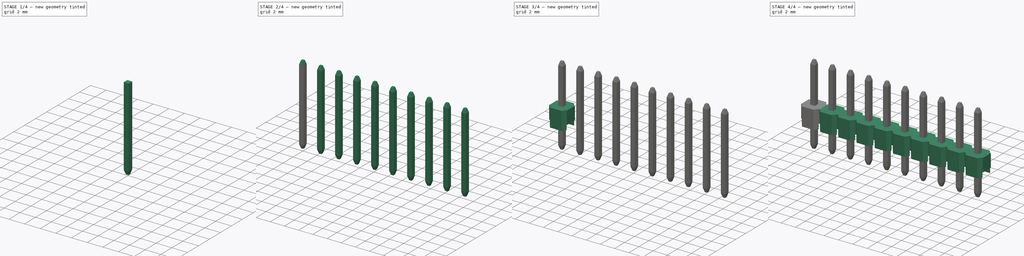
[diagram: build sequence overview — one tinted view per stage of 4, left to right]
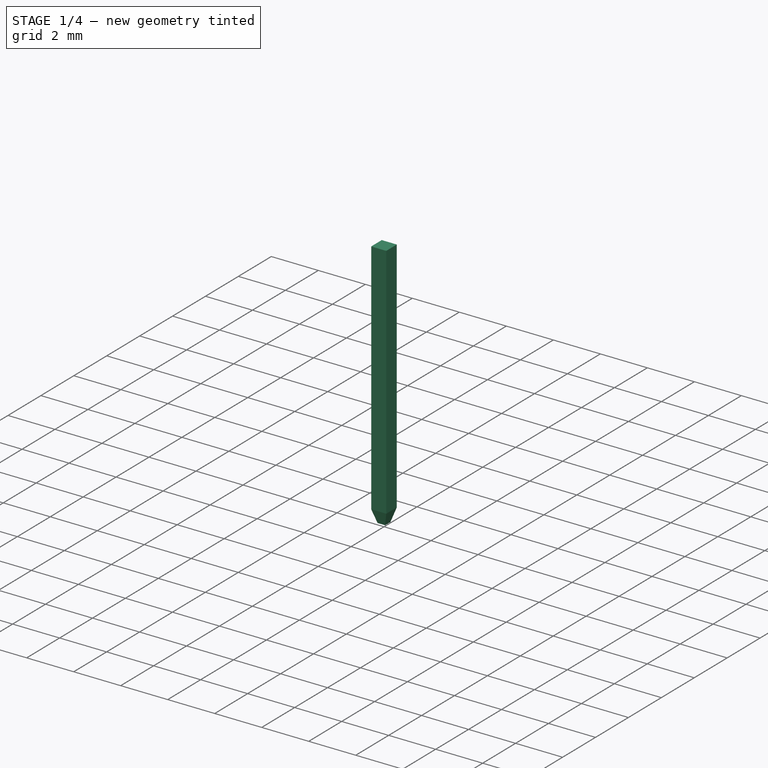
[diagram: stage 1 of 4 — iso view after this stage's code; geometry added in this stage tinted green]
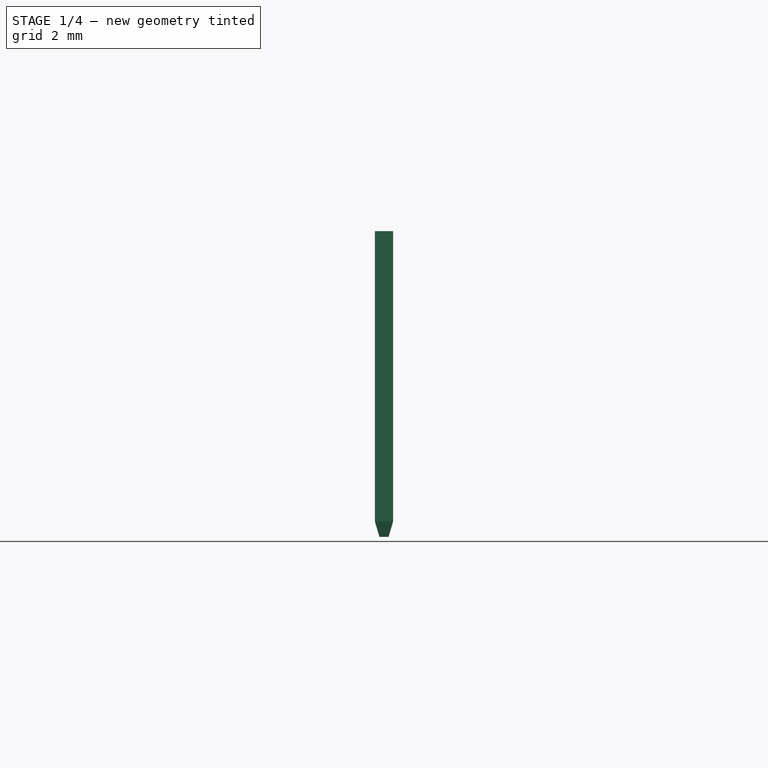
[diagram: stage 1 of 4 — front view after this stage's code; geometry added in this stage tinted green]
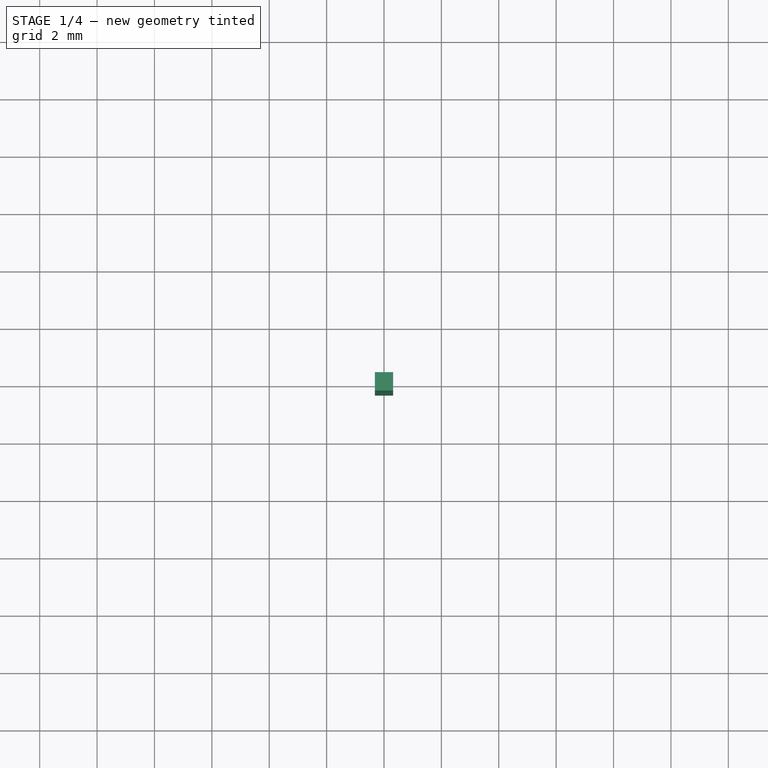
[diagram: stage 1 of 4 — top view after this stage's code; geometry added in this stage tinted green]
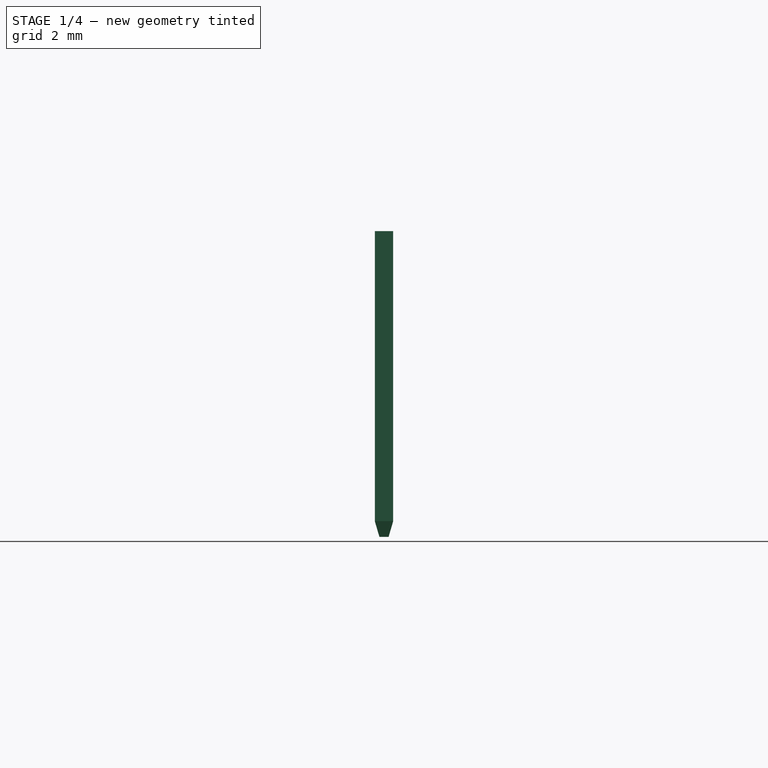
[diagram: stage 1 of 4 — right view after this stage's code; geometry added in this stage tinted green]
FCSTD DOCUMENT  (FreeCAD 0.17R11740 (Git)/Daily-PPA)
Label: 1x10-male-pin-header
License: CC-BY 3.0
LicenseURL: http://creativecommons.org/licenses/by/3.0/
objects: Sketcher::SketchObject×6, Part::FeaturePython×4, PartDesign::Pad×2, PartDesign::Pocket×2, App::DocumentObjectGroup×2, Part::Loft×1, Part::Mirroring×1, Part::MultiFuse×1, Part::Compound×1
note: 22 computed .brp shape members not serialized (recipe doc carries the construction recipe); baked Part::Feature solids carry a one-line shape summary decoded from their .brp

FEATURE [Sketcher::SketchObject] Sketch003  label="pin-base-sketch"
  MapMode = 5
  sketch-geometry (4):
    g0: LineSegment StartX=-0.32 StartY=0.32 StartZ=0 EndX=0.32 EndY=0.32 EndZ=0
    g1: LineSegment StartX=0.32 StartY=0.32 StartZ=0 EndX=0.32 EndY=-0.32 EndZ=0
    g2: LineSegment StartX=0.32 StartY=-0.32 StartZ=0 EndX=-0.32 EndY=-0.32 EndZ=0
    g3: LineSegment StartX=-0.32 StartY=-0.32 StartZ=0 EndX=-0.32 EndY=0.32 EndZ=0
  constraints (11):
    c: Coincident(g0,g1)
    c: Coincident(g1,g2)
    c: Coincident(g2,g3)
    c: Coincident(g3,g0)
    c: Horizontal(g0)
    c: Horizontal(g2)
    c: Vertical(g1)
    c: Vertical(g3)
    c: Symmetric(g0,g1,g-1)
    c: Equal(g0,g3)
    c: DistanceX(g0) = 0.64
FEATURE [PartDesign::Pad] Pad001  label="pin-base"
  Length = 10.108
  Length2 = 100
  Midplane = true
  Profile = -> Sketch003
  Type = 0
FEATURE [Sketcher::SketchObject] Sketch004  label="pin-end-bottom-base-sketch"
  MapMode = 5
  sketch-geometry (4):
    g0: LineSegment StartX=-0.32 StartY=0.32 StartZ=0 EndX=0.32 EndY=0.32 EndZ=0
    g1: LineSegment StartX=0.32 StartY=0.32 StartZ=0 EndX=0.32 EndY=-0.32 EndZ=0
    g2: LineSegment StartX=0.32 StartY=-0.32 StartZ=0 EndX=-0.32 EndY=-0.32 EndZ=0
    g3: LineSegment StartX=-0.32 StartY=-0.32 StartZ=0 EndX=-0.32 EndY=0.32 EndZ=0
  constraints (11):
    c: Coincident(g0,g1)
    c: Coincident(g1,g2)
    c: Coincident(g2,g3)
    c: Coincident(g3,g0)
    c: Horizontal(g0)
    c: Horizontal(g2)
    c: Vertical(g1)
    c: Vertical(g3)
    c: Symmetric(g0,g1,g-1)
    c: Equal(g0,g3)
    c: DistanceX(g0) = 0.64
FEATURE [Sketcher::SketchObject] Sketch005  label="pin-end-top-base-sketch"
  MapMode = 5
  Placement = pos=(0,0,0.546) rot=(0,0,1;0rad)
  sketch-geometry (4):
    g0: LineSegment StartX=-0.16 StartY=0.16 StartZ=0 EndX=0.16 EndY=0.16 EndZ=0
    g1: LineSegment StartX=0.16 StartY=0.16 StartZ=0 EndX=0.16 EndY=-0.16 EndZ=0
    g2: LineSegment StartX=0.16 StartY=-0.16 StartZ=0 EndX=-0.16 EndY=-0.16 EndZ=0
    g3: LineSegment StartX=-0.16 StartY=-0.16 StartZ=0 EndX=-0.16 EndY=0.16 EndZ=0
  constraints (11):
    c: Coincident(g0,g1)
    c: Coincident(g1,g2)
    c: Coincident(g2,g3)
    c: Coincident(g3,g0)
    c: Horizontal(g0)
    c: Horizontal(g2)
    c: Vertical(g1)
    c: Vertical(g3)
    c: Symmetric(g0,g1,g-1)
    c: Equal(g0,g3)
    c: DistanceX(g0) = 0.32
FEATURE [Part::Loft] Loft  label="pin-end"
  Closed = false
  Placement = pos=(0,0,5.054) rot=(0,0,1;0rad)
  Ruled = false
  Sections = -> [Sketch004,Sketch005]
  Solid = true
FEATURE [Part::Mirroring] Part__Mirroring  label="pin-end (Mirror #1)"
  Base = (0,0,0)
  Normal = (0,0,1)
  Source = -> Loft
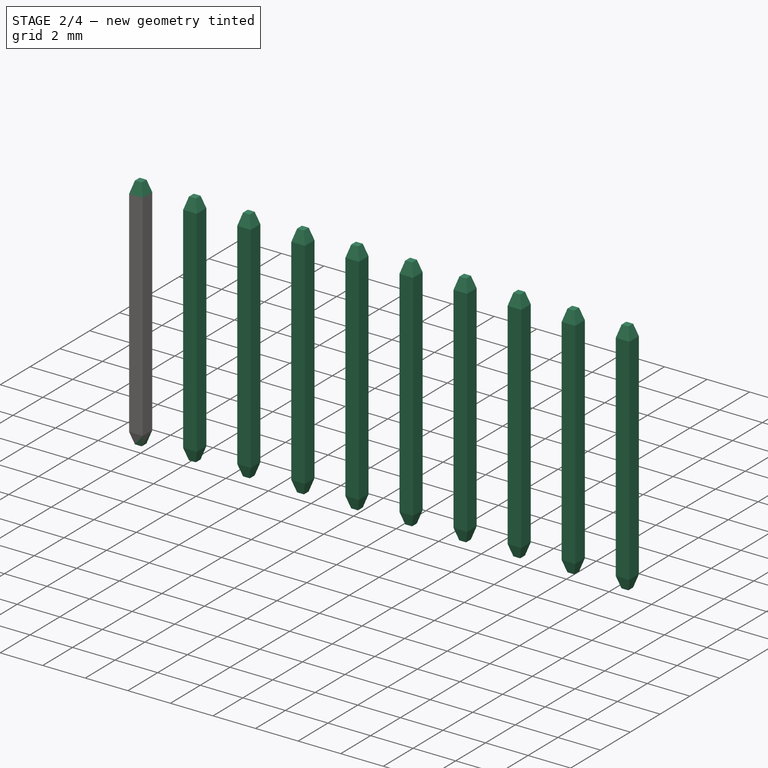
[diagram: stage 2 of 4 — iso view after this stage's code; geometry added in this stage tinted green]
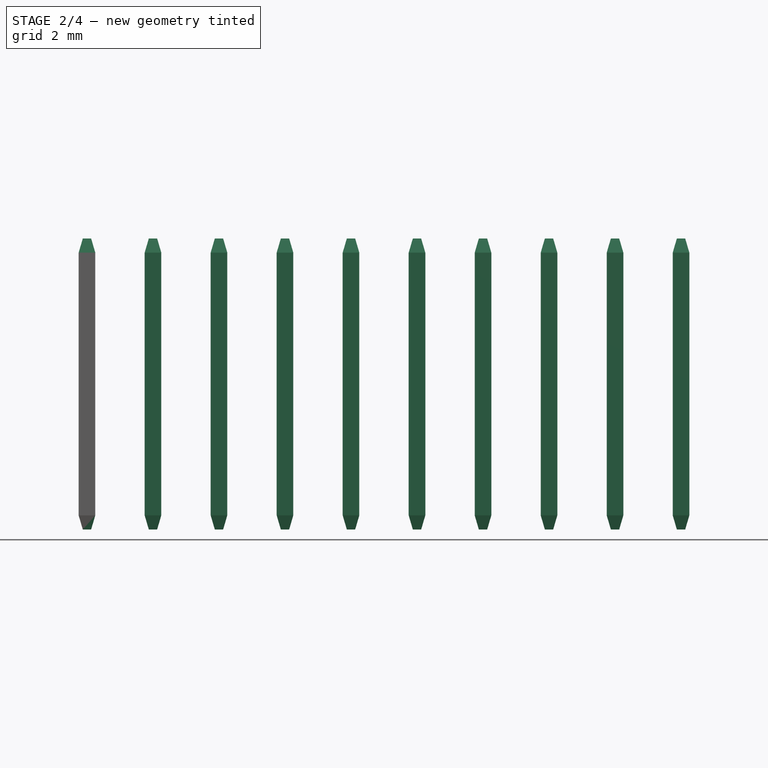
[diagram: stage 2 of 4 — front view after this stage's code; geometry added in this stage tinted green]
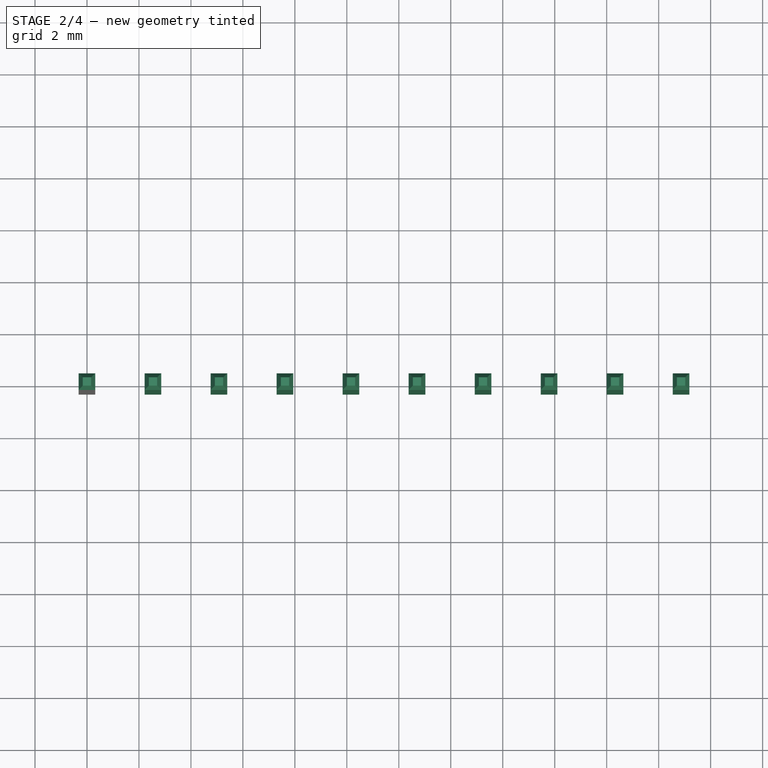
[diagram: stage 2 of 4 — top view after this stage's code; geometry added in this stage tinted green]
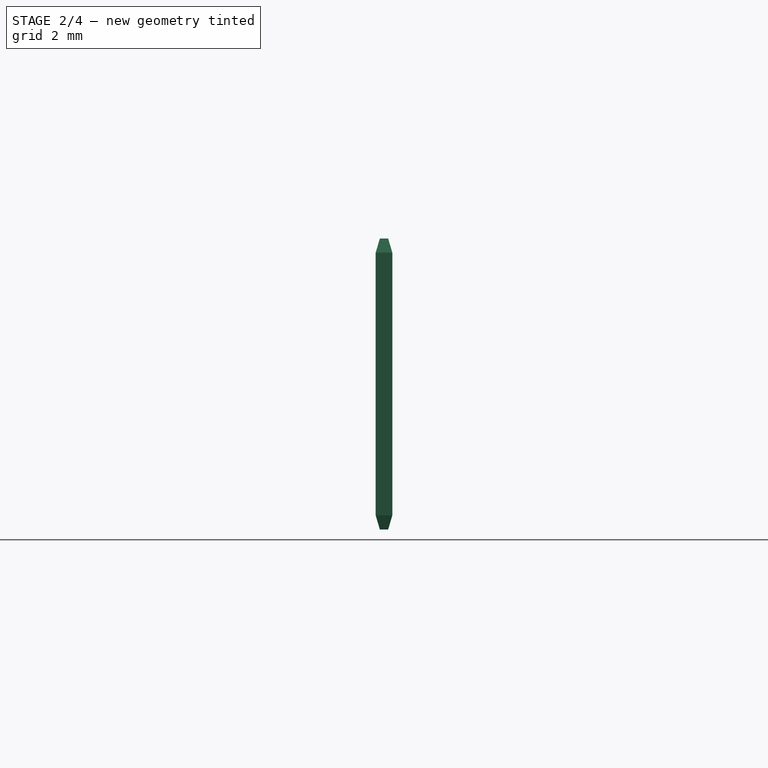
[diagram: stage 2 of 4 — right view after this stage's code; geometry added in this stage tinted green]
FEATURE [Part::MultiFuse] Fusion  label="pin"
  Placement = pos=(0,0,2.6) rot=(0,0,1;0rad)
  Shapes = -> [Pad001,Loft,Part__Mirroring]
FEATURE [App::DocumentObjectGroup] Group  label="pin-support-src"
  Group = -> [Pad002,Pocket001002,Pocket001003,Array]
FEATURE [Part::FeaturePython] Array002  # Draft array (typed FeaturePython)
  Angle = 360
  ArrayType = 0
  Axis = (0,0,1)
  Base = -> Fusion
  Center = (0,0,0)
  IntervalX = (2.54,0,0)
  IntervalY = (0,1,0)
  IntervalZ = (0,0,1)
  NumberPolar = 1
  NumberX = 10
  NumberY = 1
  NumberZ = 1
FEATURE [Part::FeaturePython] Clone001  label="array-of-pin"  # Draft clone (typed FeaturePython)
  Objects = -> [Array002]
  Scale = (1,1,1)
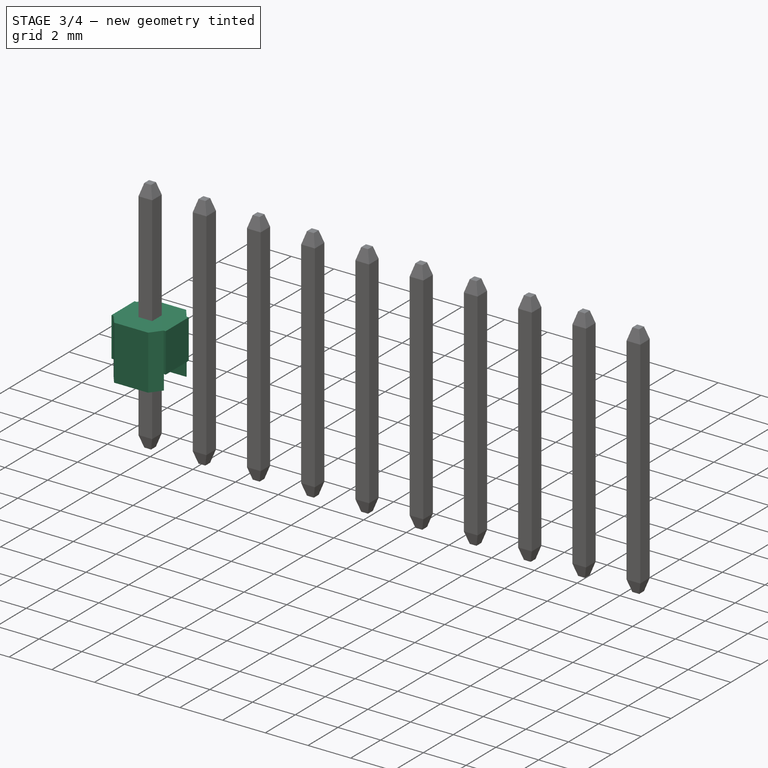
[diagram: stage 3 of 4 — iso view after this stage's code; geometry added in this stage tinted green]
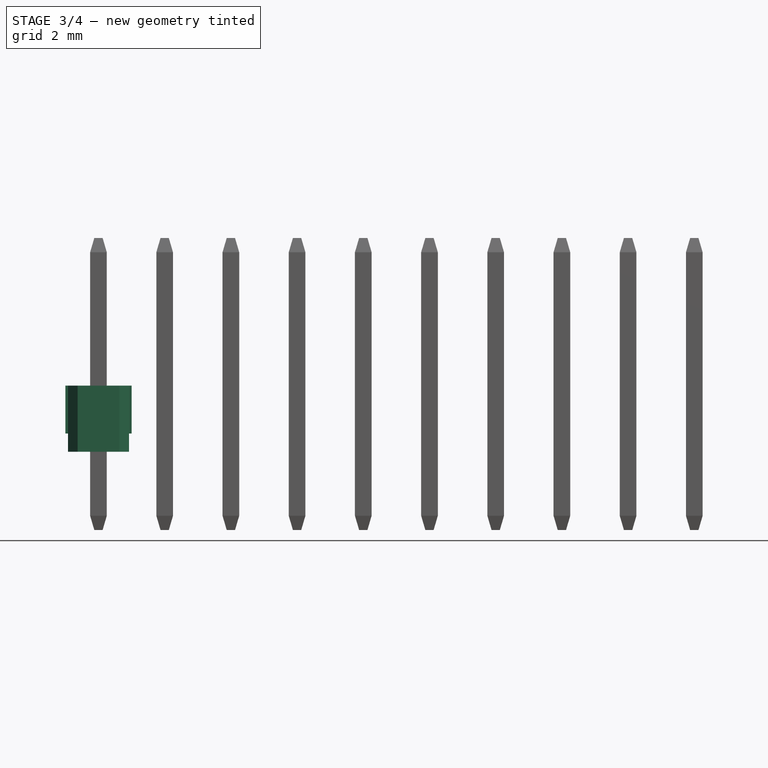
[diagram: stage 3 of 4 — front view after this stage's code; geometry added in this stage tinted green]
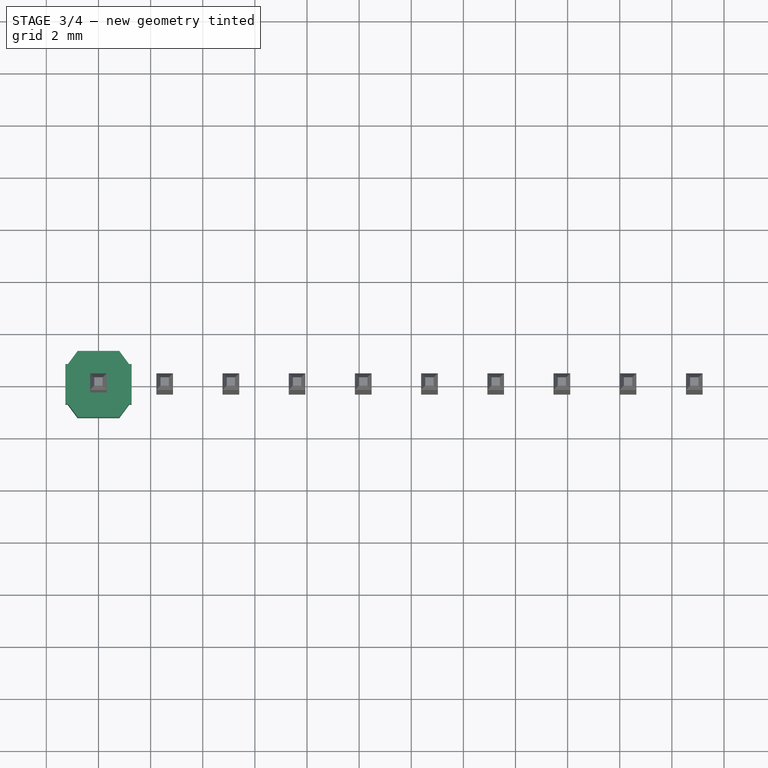
[diagram: stage 3 of 4 — top view after this stage's code; geometry added in this stage tinted green]
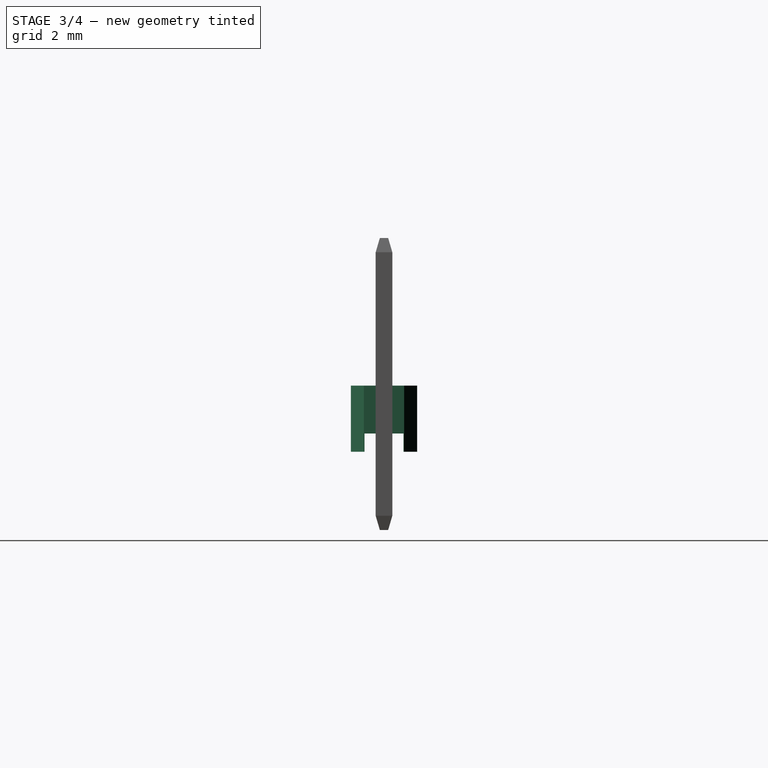
[diagram: stage 3 of 4 — right view after this stage's code; geometry added in this stage tinted green]
FEATURE [Sketcher::SketchObject] Sketch006  label="pin-support-main-sketch"
  MapMode = 5
  sketch-geometry (16):
    g0: LineSegment [constr] StartX=-1.27 StartY=1.27 StartZ=0 EndX=1.27 EndY=1.27 EndZ=0
    g1: LineSegment [constr] StartX=1.27 StartY=1.27 StartZ=0 EndX=1.27 EndY=-1.27 EndZ=0
    g2: LineSegment [constr] StartX=1.27 StartY=-1.27 StartZ=0 EndX=-1.27 EndY=-1.27 EndZ=0
    g3: LineSegment [constr] StartX=-1.27 StartY=-1.27 StartZ=0 EndX=-1.27 EndY=1.27 EndZ=0
    g4: LineSegment StartX=-1.27 StartY=0.77 StartZ=0 EndX=-1.17 EndY=0.77 EndZ=0
    g5: LineSegment StartX=-1.17 StartY=0.77 StartZ=0 EndX=-0.8 EndY=1.27 EndZ=0
    g6: LineSegment StartX=-0.8 StartY=1.27 StartZ=0 EndX=0.8 EndY=1.27 EndZ=0
    g7: LineSegment StartX=0.8 StartY=1.27 StartZ=0 EndX=1.17 EndY=0.77 EndZ=0
    g8: LineSegment StartX=1.17 StartY=0.77 StartZ=0 EndX=1.27 EndY=0.77 EndZ=0
    g9: LineSegment StartX=-1.27 StartY=-0.77 StartZ=0 EndX=-1.17 EndY=-0.77 EndZ=0
    g10: LineSegment StartX=-1.17 StartY=-0.77 StartZ=0 EndX=-0.8 EndY=-1.27 EndZ=0
    g11: LineSegment StartX=-0.8 StartY=-1.27 StartZ=0 EndX=0.8 EndY=-1.27 EndZ=0
    g12: LineSegment StartX=0.8 StartY=-1.27 StartZ=0 EndX=1.17 EndY=-0.77 EndZ=0
    g13: LineSegment StartX=1.17 StartY=-0.77 StartZ=0 EndX=1.27 EndY=-0.77 EndZ=0
    g14: LineSegment StartX=-1.27 StartY=0.77 StartZ=0 EndX=-1.27 EndY=-0.77 EndZ=0
    g15: LineSegment StartX=1.27 StartY=0.77 StartZ=0 EndX=1.27 EndY=-0.77 EndZ=0
  constraints (43):
    c: Coincident(g0,g1)
    c: Coincident(g1,g2)
    c: Coincident(g2,g3)
    c: Coincident(g3,g0)
    c: Horizontal(g0)
    c: Horizontal(g2)
    c: Vertical(g1)
    c: Vertical(g3)
    c: Symmetric(g0,g1,g-1)
    c: Equal(g3,g0)
    c: DistanceX(g0) = 2.54
    c: Coincident(g4,g5)
    c: Coincident(g5,g6)
    c: Coincident(g6,g7)
    c: Coincident(g7,g8)
    c: Horizontal(g8)
    c: Horizontal(g6)
    c: DistanceX(g6) = 1.6
    c: Symmetric(g6,g5,g-2)
    c: Symmetric(g4,g7,g-2)
    c: Symmetric(g4,g8,g-2)
    c: PointOnObject(g4,g3)
    c: PointOnObject(g5,g0)
    c: DistanceX(g4) = 0.1
    c: DistanceY(g4,g5) = 0.5
    c: Coincident(g9,g10)
    c: Coincident(g10,g11)
    c: Coincident(g11,g12)
    c: Coincident(g12,g13)
    c: Horizontal(g11)
    c: Horizontal(g13)
    c: Symmetric(g10,g11,g-2)
    c: Symmetric(g9,g12,g-2)
    c: Symmetric(g9,g13,g-2)
    c: Symmetric(g9,g4,g-1)
    c: Symmetric(g5,g10,g-1)
    c: Symmetric(g9,g4,g-1)
    c: Vertical(g14)
    c: Coincident(g14,g9)
    c: Coincident(g14,g4)
    c: Vertical(g15)
    c: Coincident(g15,g8)
    c: Coincident(g15,g13)
FEATURE [PartDesign::Pad] Pad002  label="pin-support-main"
  Length = 2.54
  Length2 = 100
  Profile = -> Sketch006
  Type = 0
FEATURE [Sketcher::SketchObject] Sketch007  label="pin-support-cutout-1-sketch"
  ExternalGeometry = -> [Pad002]
  MapMode = 5
  Placement = pos=(0,-0.77,0) rot=(1,0,0;1.5708rad)
  Support = -> [Pad002]
  sketch-geometry (12):
    g0: LineSegment StartX=1.17 StartY=0.7 StartZ=0 EndX=1.27 EndY=0.7 EndZ=0
    g1: LineSegment [constr] StartX=1.27 StartY=0.7 StartZ=0 EndX=1.27 EndY=0 EndZ=0
    g2: LineSegment [constr] StartX=1.27 StartY=0 StartZ=0 EndX=1.17 EndY=0 EndZ=0
    g3: LineSegment StartX=1.17 StartY=0 StartZ=0 EndX=1.17 EndY=0.7 EndZ=0
    g4: LineSegment StartX=1.17 StartY=0 StartZ=0 EndX=1.17 EndY=-0.1 EndZ=0
    g5: LineSegment StartX=1.17 StartY=-0.1 StartZ=0 EndX=1.37 EndY=-0.1 EndZ=0
    g6: LineSegment StartX=1.37 StartY=-0.1 StartZ=0 EndX=1.37 EndY=0.7 EndZ=0
    g7: LineSegment StartX=1.37 StartY=0.7 StartZ=0 EndX=1.27 EndY=0.7 EndZ=0
    g8: LineSegment StartX=-1.37 StartY=0.7 StartZ=0 EndX=-1.17 EndY=0.7 EndZ=0
    g9: LineSegment StartX=-1.17 StartY=0.7 StartZ=0 EndX=-1.17 EndY=-0.1 EndZ=0
    g10: LineSegment StartX=-1.17 StartY=-0.1 StartZ=0 EndX=-1.37 EndY=-0.1 EndZ=0
    g11: LineSegment StartX=-1.37 StartY=-0.1 StartZ=0 EndX=-1.37 EndY=0.7 EndZ=0
  constraints (33):
    c: Coincident(g0,g1)
    c: Coincident(g1,g2)
    c: Coincident(g2,g3)
    c: Coincident(g3,g0)
    c: Horizontal(g0)
    c: Horizontal(g2)
    c: Vertical(g1)
    c: PointOnObject(g0,g-3)
    c: Coincident(g2,g-3)
    c: Coincident(g1,g-4)
    c: Coincident(g4,g5)
    c: Coincident(g5,g6)
    c: Coincident(g6,g7)
    c: Horizontal(g5)
    c: Horizontal(g7)
    c: Vertical(g6)
    c: Vertical(g4)
    c: Coincident(g2,g4)
    c: Coincident(g7,g0)
    c: DistanceY(g2,g0) = 0.7
    c: Equal(g4,g7)
    c: DistanceX(g7) = -0.1
    c: Coincident(g8,g9)
    c: Coincident(g9,g10)
    c: Coincident(g10,g11)
    c: Coincident(g11,g8)
    c: Horizontal(g8)
    c: Horizontal(g10)
    c: Vertical(g9)
    c: Vertical(g11)
    c: Symmetric(g8,g0,g-2)
    c: Symmetric(g8,g6,g-2)
    c: Symmetric(g9,g4,g-2)
FEATURE [PartDesign::Pocket] Pocket001002  label="pin-support-cutout-1"
  Length = 5
  Profile = -> Sketch007
  Type = 1
FEATURE [Sketcher::SketchObject] Sketch008  label="pin-support-cutout-2-sketch"
  MapMode = 5
  Placement = pos=(0,0,0) rot=(1,0,0;3.14159rad)
  Support = -> [Pocket001002]
  sketch-geometry (4):
    g0: LineSegment StartX=-1.5 StartY=0.75 StartZ=0 EndX=1.5 EndY=0.75 EndZ=0
    g1: LineSegment StartX=1.5 StartY=0.75 StartZ=0 EndX=1.5 EndY=-0.75 EndZ=0
    g2: LineSegment StartX=1.5 StartY=-0.75 StartZ=0 EndX=-1.5 EndY=-0.75 EndZ=0
    g3: LineSegment StartX=-1.5 StartY=-0.75 StartZ=0 EndX=-1.5 EndY=0.75 EndZ=0
  constraints (11):
    c: Coincident(g0,g1)
    c: Coincident(g1,g2)
    c: Coincident(g2,g3)
    c: Coincident(g3,g0)
    c: Horizontal(g0)
    c: Horizontal(g2)
    c: Vertical(g1)
    c: Vertical(g3)
    c: Symmetric(g0,g1,g-1)
    c: DistanceY(g3) = 1.5
    c: DistanceX(g0) = 3
FEATURE [PartDesign::Pocket] Pocket001003  label="pin-support-cutout-2"
  Length = 0.7
  Profile = -> Sketch008
  Type = 0
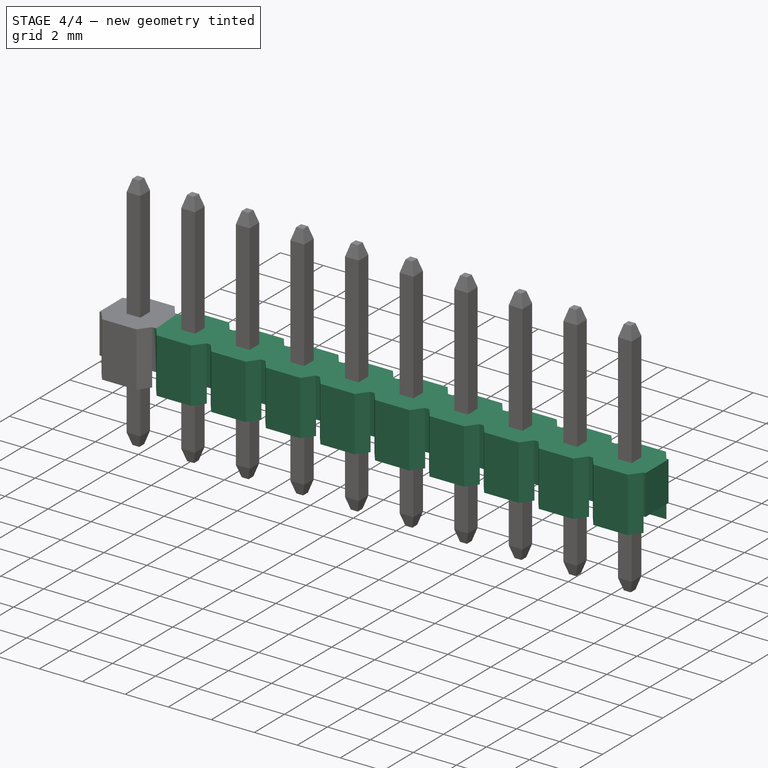
[diagram: stage 4 of 4 — iso view after this stage's code; geometry added in this stage tinted green]
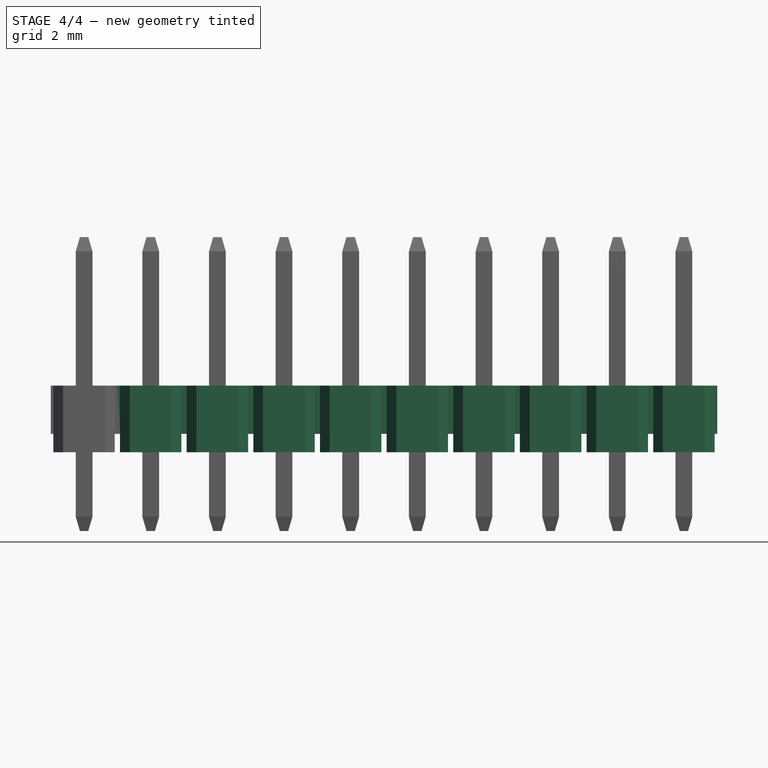
[diagram: stage 4 of 4 — front view after this stage's code; geometry added in this stage tinted green]
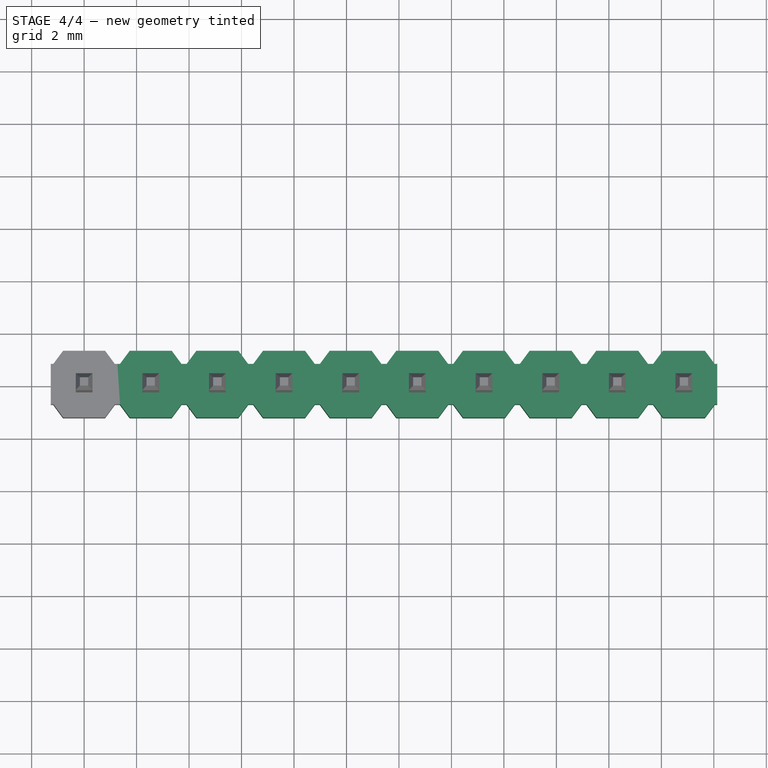
[diagram: stage 4 of 4 — top view after this stage's code; geometry added in this stage tinted green]
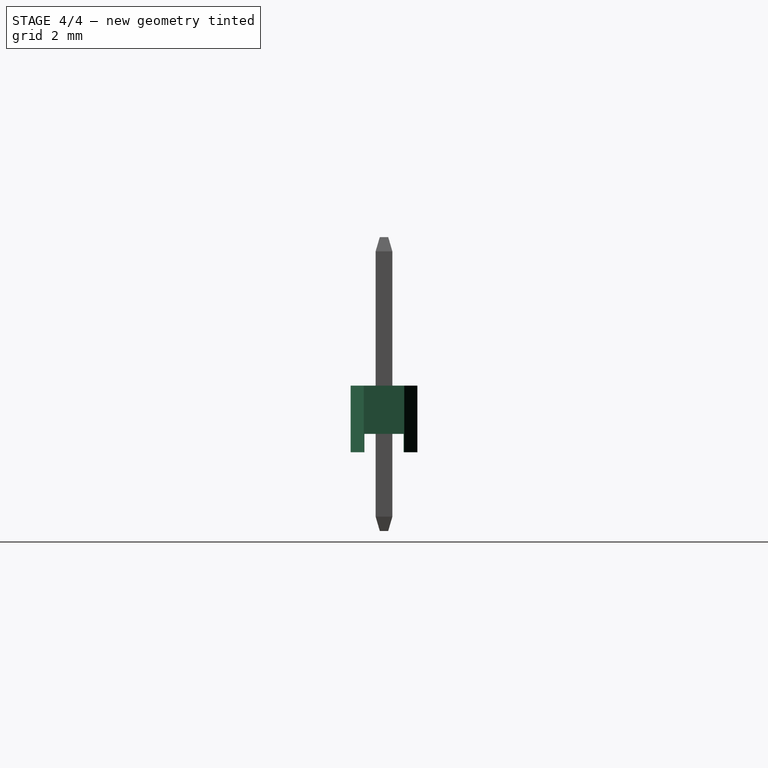
[diagram: stage 4 of 4 — right view after this stage's code; geometry added in this stage tinted green]
FEATURE [Part::FeaturePython] Array  # Draft array (typed FeaturePython)
  Angle = 360
  ArrayType = 0
  Axis = (0,0,1)
  Base = -> Pocket001003
  Center = (0,0,0)
  IntervalX = (2.54,0,0)
  IntervalY = (0,1,0)
  IntervalZ = (0,0,1)
  NumberPolar = 1
  NumberX = 10
  NumberY = 1
  NumberZ = 1
FEATURE [App::DocumentObjectGroup] Group001  label="pin-src"
  Group = -> [Loft,Pad001,Part__Mirroring,Fusion,Array002]
FEATURE [Part::FeaturePython] Clone  label="array-of-pin-suports"  # Draft clone (typed FeaturePython)
  Objects = -> [Array]
  Scale = (1,1,1)
FEATURE [Part::Compound] Compound  label="1x10-male-pin-header-final"
  Links = -> [Clone,Clone001]
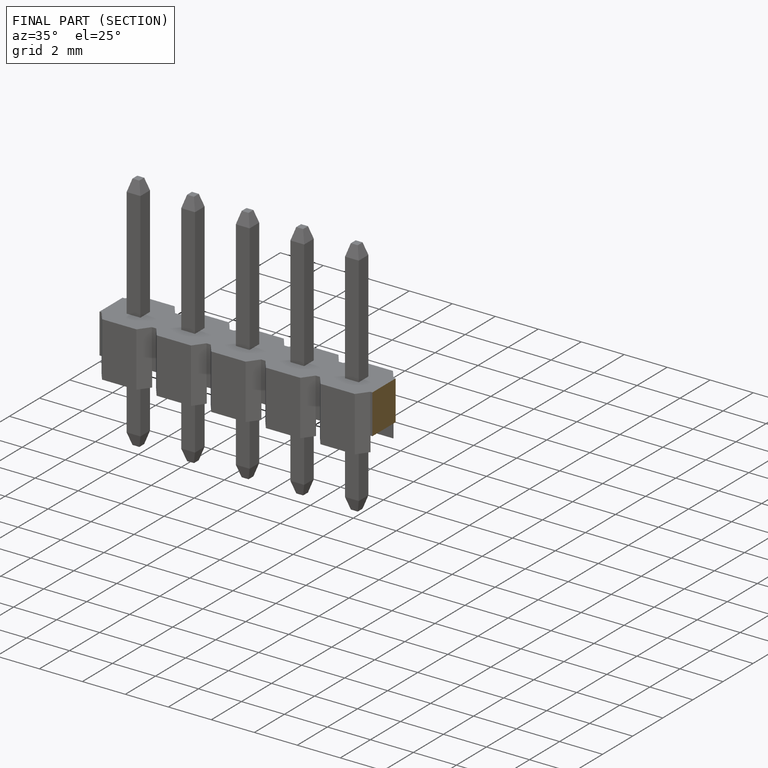
[diagram: finished part — half-section view (interior)]
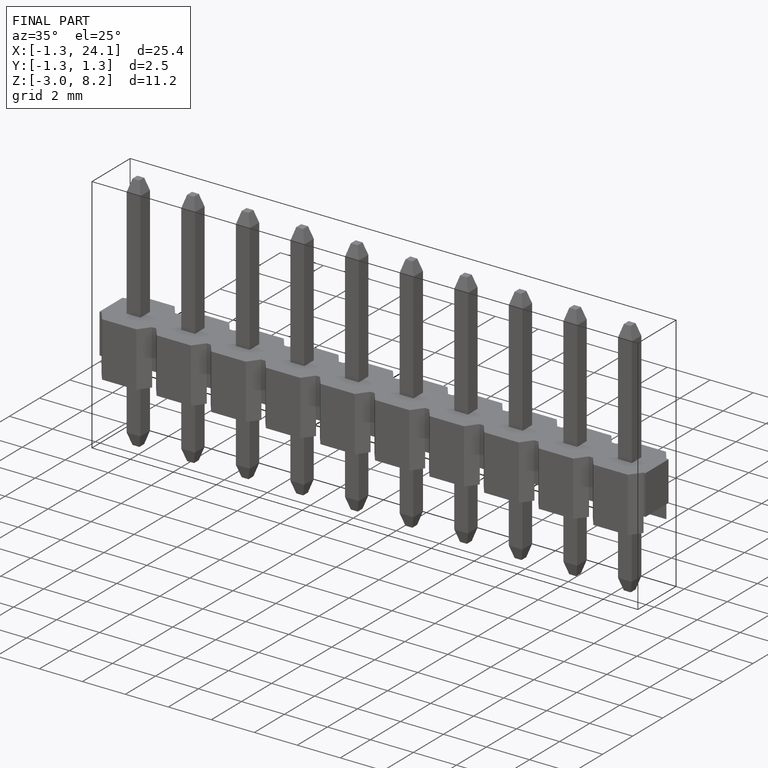
[diagram: finished part — iso view with bounding-box wireframe]
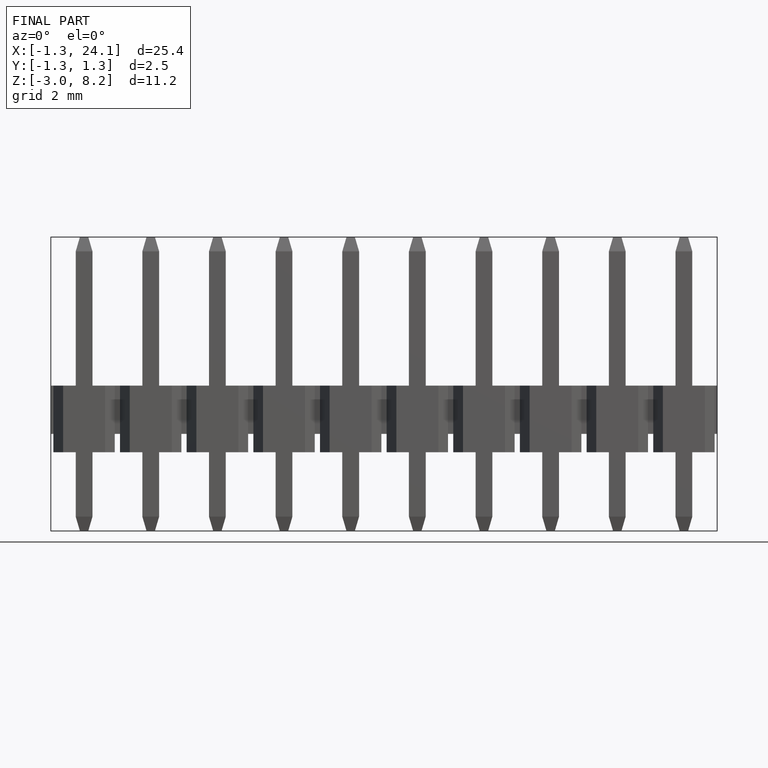
[diagram: finished part — front view with bounding-box wireframe]
